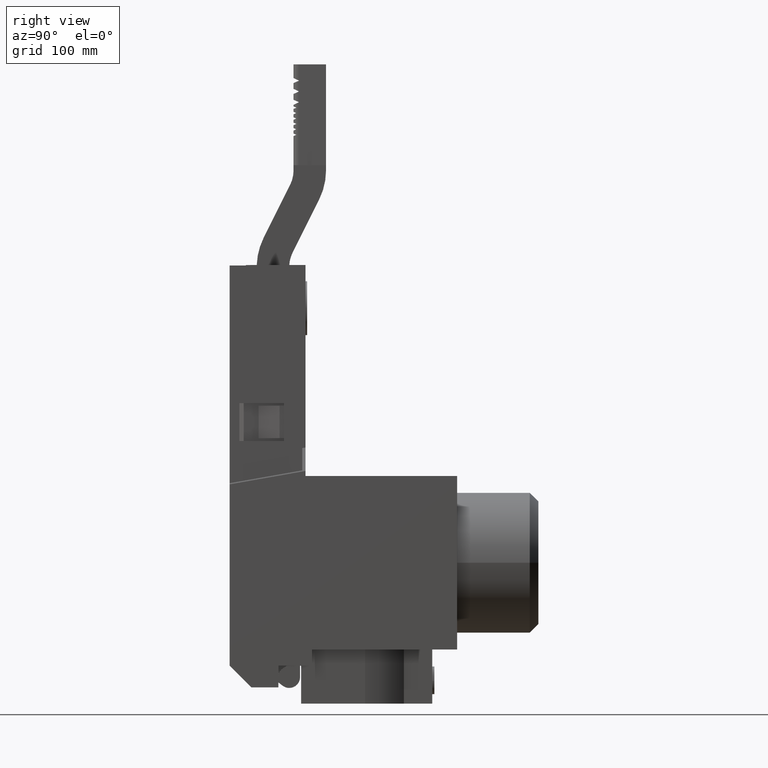
[diagram: clean part render]
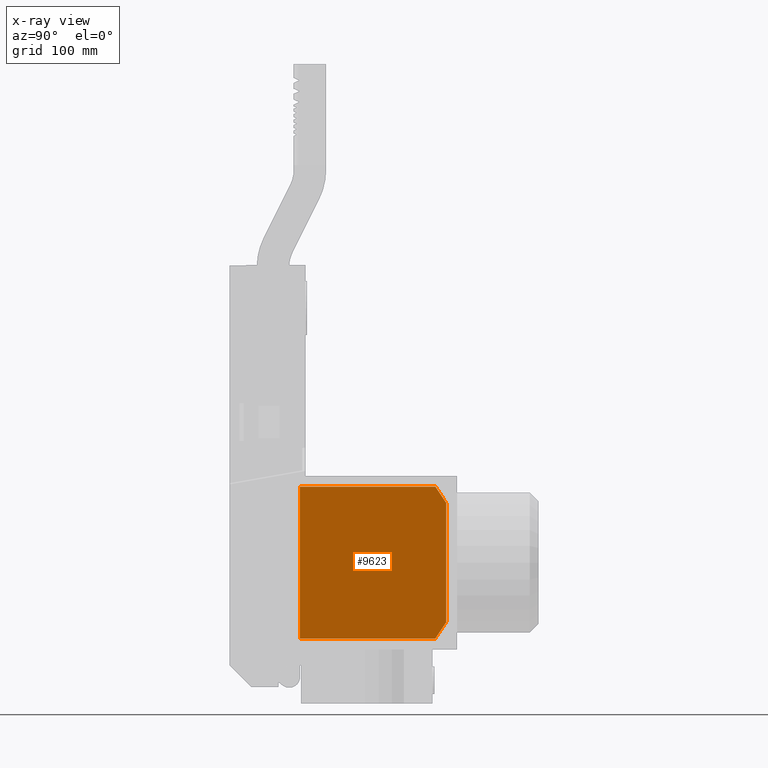
[diagram: x-ray — body ghosted, one internal face saturated and labeled with its STEP entity id]
A machine part, right view, then the same camera in x-ray: the body is ghosted and one INTERNAL B-rep face — a face not visible from any outside direction — is saturated and labeled: STEP entity #9623.
In plain terms, the highlighted planar face has unit normal (1, 0, 0).
Its self-contained STEP definition (entity closure, byte-faithful):
#246=CARTESIAN_POINT('',(-100.59263777450509,93.565370274609705,60.099999999999874));
#247=VERTEX_POINT('',#246);
#254=CARTESIAN_POINT('',(-100.59263777450532,93.565370274609535,200.10000000000008));
#255=VERTEX_POINT('',#254);
#256=CARTESIAN_POINT('',(-100.59263777450533,93.565370274609563,200.10000000000008));
#257=DIRECTION('',(0.0,0.0,-1.0));
#258=VECTOR('',#257,140.00000000000023);
#259=LINE('',#256,#258);
#260=EDGE_CURVE('',#255,#247,#259,.T.);
#1288=CARTESIAN_POINT('',(-100.59263777450528,218.56537027461053,200.10000000000008));
#1289=VERTEX_POINT('',#1288);
#1290=CARTESIAN_POINT('',(-100.59263777450532,93.565370274609535,200.10000000000008));
#1291=DIRECTION('',(0.0,1.0,0.0));
#1292=VECTOR('',#1291,125.00000000000099);
#1293=LINE('',#1290,#1292);
#1294=EDGE_CURVE('',#255,#1289,#1293,.T.);
#1374=CARTESIAN_POINT('',(-100.59263777450528,228.56537027461053,185.05544570538646));
#1375=VERTEX_POINT('',#1374);
#1383=CARTESIAN_POINT('',(-100.59263777450509,228.56537027461053,75.144554294613513));
#1384=VERTEX_POINT('',#1383);
#1385=CARTESIAN_POINT('',(-100.59263777450532,228.56537027461053,185.05544570538646));
#1386=DIRECTION('',(0.0,0.0,-1.0));
#1387=VECTOR('',#1386,109.91089141077296);
#1388=LINE('',#1385,#1387);
#1389=EDGE_CURVE('',#1375,#1384,#1388,.T.);
#9579=CARTESIAN_POINT('',(-100.59263777450509,83.565370274610558,60.099999999999874));
#9580=DIRECTION('',(1.0,0.0,0.0));
#9581=DIRECTION('',(0.0,0.0,-1.0));
#9582=AXIS2_PLACEMENT_3D('',#9579,#9580,#9581);
#9583=PLANE('',#9582);
#9584=ORIENTED_EDGE('',*,*,#260,.T.);
#9585=CARTESIAN_POINT('',(-100.59263777450504,218.56537027461053,60.099999999999902));
#9586=VERTEX_POINT('',#9585);
#9587=CARTESIAN_POINT('',(-100.59263777450509,93.565370274609705,60.099999999999874));
#9588=DIRECTION('',(0.0,1.0,0.0));
#9589=VECTOR('',#9588,125.0000000000008);
#9590=LINE('',#9587,#9589);
#9591=EDGE_CURVE('',#247,#9586,#9590,.T.);
#9592=ORIENTED_EDGE('',*,*,#9591,.T.);
#9593=CARTESIAN_POINT('',(-100.59263777450509,228.56537027461053,75.144554294613471));
#9594=CARTESIAN_POINT('',(-100.59263777450504,224.16736701871824,68.022419771886916));
#9595=CARTESIAN_POINT('',(-100.59263777450504,218.56537027461053,60.099999999999909));
#9603=(BOUNDED_CURVE()B_SPLINE_CURVE(2,(#9593,#9594,#9595),.UNSPECIFIED.,.F.,.U.)B_SPLINE_CURVE_WITH_KNOTS((3,3),(0.0,0.180670220576114),.UNSPECIFIED.)CURVE()GEOMETRIC_REPRESENTATION_ITEM()RATIONAL_B_SPLINE_CURVE((1.0,1.003217746877113,1.0))REPRESENTATION_ITEM(''));
#9604=EDGE_CURVE('',#1384,#9586,#9603,.T.);
#9605=ORIENTED_EDGE('',*,*,#9604,.F.);
#9606=ORIENTED_EDGE('',*,*,#1389,.F.);
#9607=CARTESIAN_POINT('',(-100.59263777450528,218.56537027461053,200.10000000000008));
#9608=CARTESIAN_POINT('',(-100.59263777450528,224.1673670187181,192.17758022811319));
#9609=CARTESIAN_POINT('',(-100.59263777450528,228.56537027461053,185.05544570538649));
#9617=(BOUNDED_CURVE()B_SPLINE_CURVE(2,(#9607,#9608,#9609),.UNSPECIFIED.,.F.,.U.)B_SPLINE_CURVE_WITH_KNOTS((3,3),(0.0,0.180670220576114),.UNSPECIFIED.)CURVE()GEOMETRIC_REPRESENTATION_ITEM()RATIONAL_B_SPLINE_CURVE((1.0,1.003217746877269,1.0))REPRESENTATION_ITEM(''));
#9618=EDGE_CURVE('',#1289,#1375,#9617,.T.);
#9619=ORIENTED_EDGE('',*,*,#9618,.F.);
#9620=ORIENTED_EDGE('',*,*,#1294,.F.);
#9621=EDGE_LOOP('',(#9584,#9592,#9605,#9606,#9619,#9620));
#9622=FACE_OUTER_BOUND('',#9621,.T.);
#9623=ADVANCED_FACE('',(#9622),#9583,.T.);